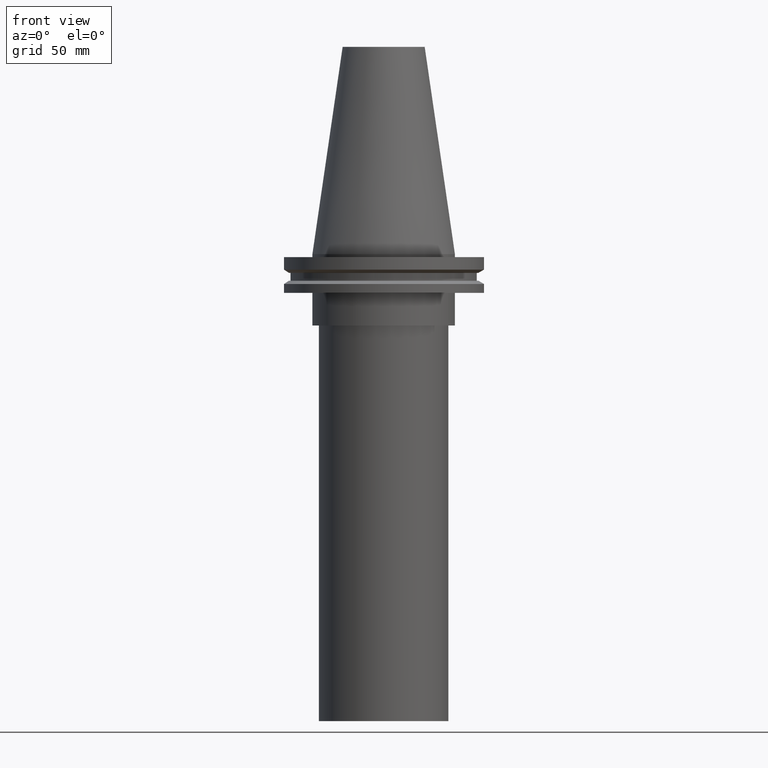
[diagram: clean part render]
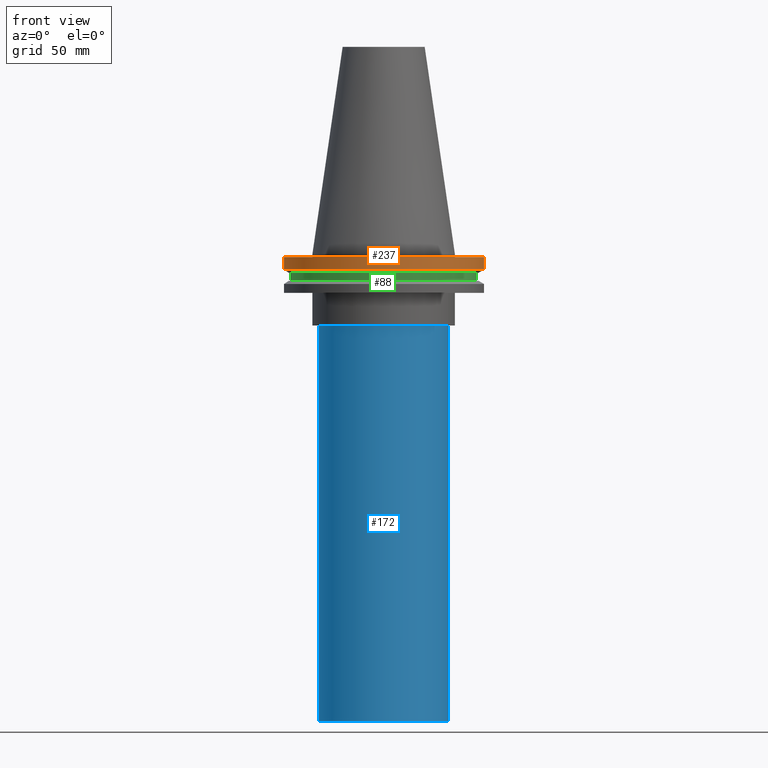
[diagram: same view with three faces highlighted in distinct colors, each labeled with its STEP entity id]
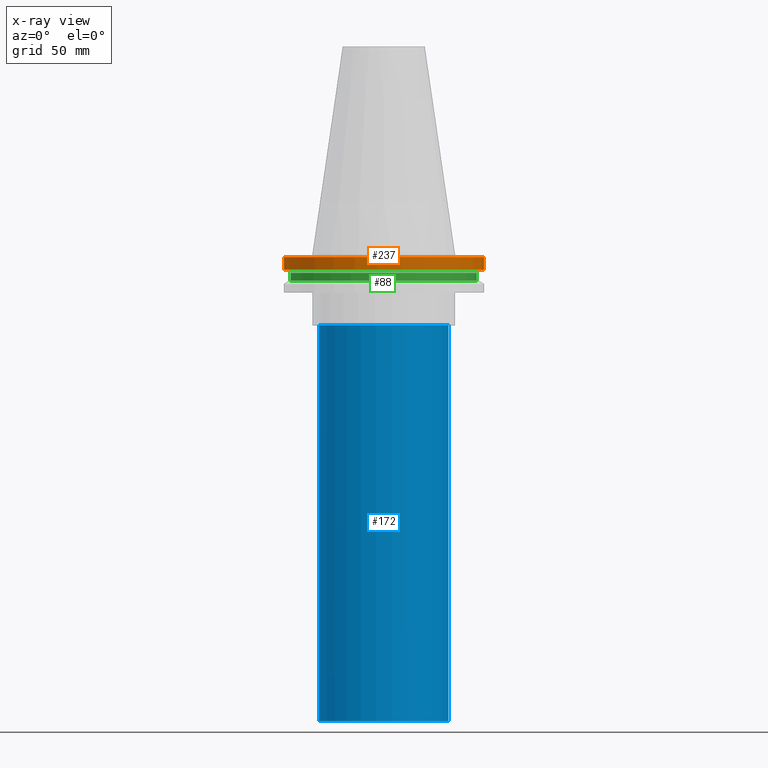
[diagram: x-ray of the same camera — body ghosted, the three highlighted faces saturated]
A machine part, front view with three faces highlighted in distinct colors.
The next image is the same camera in x-ray (body ghosted, the three faces saturated) — at least one of them is partly hidden behind the body in this view.
Their STEP definitions:

[orange] entity #237 — the highlighted cylindrical surface (bore or boss wall) has radius 49.215 mm, axis along (-0, -0, 1).
#28 = FACE_OUTER_BOUND ( 'NONE', #228, .T. ) ;
#38 = EDGE_LOOP ( 'NONE', ( #319 ) ) ;
#82 = CIRCLE ( 'NONE', #267, 49.21500000000000341 ) ;
#85 = VERTEX_POINT ( 'NONE', #387 ) ;
#98 = CARTESIAN_POINT ( 'NONE',  ( 0.000000000000000000, 0.000000000000000000, 101.5999999999999943 ) ) ;
#99 = DIRECTION ( 'NONE',  ( 1.000000000000000000, 0.000000000000000000, 0.000000000000000000 ) ) ;
#114 = CIRCLE ( 'NONE', #304, 49.21499999999999631 ) ;
#128 = CARTESIAN_POINT ( 'NONE',  ( 0.000000000000000000, 0.000000000000000000, -7.602389855251287187 ) ) ;
#129 = DIRECTION ( 'NONE',  ( -0.000000000000000000, -0.000000000000000000, 1.000000000000000000 ) ) ;
#141 = AXIS2_PLACEMENT_3D ( 'NONE', #98, #312, #99 ) ;
#183 = FACE_OUTER_BOUND ( 'NONE', #38, .T. ) ;
#222 = DIRECTION ( 'NONE',  ( -0.000000000000000000, -0.000000000000000000, 1.000000000000000000 ) ) ;
#228 = EDGE_LOOP ( 'NONE', ( #310 ) ) ;
#230 = CARTESIAN_POINT ( 'NONE',  ( 49.21500000000000341, 0.000000000000000000, -7.602389855251287187 ) ) ;
#237 = ADVANCED_FACE ( 'NONE', ( #183, #28 ), #365, .T. ) ;
#253 = DIRECTION ( 'NONE',  ( 1.000000000000000000, 0.000000000000000000, 0.000000000000000000 ) ) ;
#267 = AXIS2_PLACEMENT_3D ( 'NONE', #128, #129, #381 ) ;
#304 = AXIS2_PLACEMENT_3D ( 'NONE', #377, #222, #253 ) ;
#310 = ORIENTED_EDGE ( 'NONE', *, *, #320, .T. ) ;
#312 = DIRECTION ( 'NONE',  ( -0.000000000000000000, -0.000000000000000000, 1.000000000000000000 ) ) ;
#319 = ORIENTED_EDGE ( 'NONE', *, *, #394, .F. ) ;
#320 = EDGE_CURVE ( 'NONE', #390, #390, #82, .T. ) ;
#365 = CYLINDRICAL_SURFACE ( 'NONE', #141, 49.21499999999999631 ) ;
#377 = CARTESIAN_POINT ( 'NONE',  ( 0.000000000000000000, 0.000000000000000000, -1.499999999999987566 ) ) ;
#381 = DIRECTION ( 'NONE',  ( 1.000000000000000000, 0.000000000000000000, 0.000000000000000000 ) ) ;
#387 = CARTESIAN_POINT ( 'NONE',  ( 49.21499999999999631, 0.000000000000000000, -1.499999999999987566 ) ) ;
#390 = VERTEX_POINT ( 'NONE', #230 ) ;
#394 = EDGE_CURVE ( 'NONE', #85, #85, #114, .T. ) ;

[blue] entity #172 — the highlighted cylindrical surface (bore or boss wall) has radius 31.75 mm, axis along (-0, -0, 1).
#50 = CARTESIAN_POINT ( 'NONE',  ( 31.75000000000000000, 0.000000000000000000, -35.00000000000000000 ) ) ;
#63 = CARTESIAN_POINT ( 'NONE',  ( 0.000000000000000000, 0.000000000000000000, -229.0000000000000000 ) ) ;
#67 = CARTESIAN_POINT ( 'NONE',  ( 0.000000000000000000, 0.000000000000000000, 0.000000000000000000 ) ) ;
#124 = DIRECTION ( 'NONE',  ( 1.000000000000000000, 0.000000000000000000, 0.000000000000000000 ) ) ;
#136 = ORIENTED_EDGE ( 'NONE', *, *, #286, .F. ) ;
#147 = AXIS2_PLACEMENT_3D ( 'NONE', #63, #303, #124 ) ;
#150 = DIRECTION ( 'NONE',  ( 1.000000000000000000, 0.000000000000000000, 0.000000000000000000 ) ) ;
#158 = EDGE_CURVE ( 'NONE', #188, #188, #215, .T. ) ;
#172 = ADVANCED_FACE ( 'NONE', ( #218, #211 ), #178, .T. ) ;
#173 = VERTEX_POINT ( 'NONE', #50 ) ;
#177 = AXIS2_PLACEMENT_3D ( 'NONE', #67, #371, #150 ) ;
#178 = CYLINDRICAL_SURFACE ( 'NONE', #177, 31.75000000000000000 ) ;
#179 = DIRECTION ( 'NONE',  ( -0.000000000000000000, -0.000000000000000000, 1.000000000000000000 ) ) ;
#188 = VERTEX_POINT ( 'NONE', #342 ) ;
#189 = AXIS2_PLACEMENT_3D ( 'NONE', #240, #179, #307 ) ;
#198 = EDGE_LOOP ( 'NONE', ( #252 ) ) ;
#211 = FACE_OUTER_BOUND ( 'NONE', #198, .T. ) ;
#215 = CIRCLE ( 'NONE', #147, 31.75000000000000000 ) ;
#218 = FACE_OUTER_BOUND ( 'NONE', #337, .T. ) ;
#240 = CARTESIAN_POINT ( 'NONE',  ( 0.000000000000000000, 0.000000000000000000, -35.00000000000000000 ) ) ;
#252 = ORIENTED_EDGE ( 'NONE', *, *, #158, .T. ) ;
#286 = EDGE_CURVE ( 'NONE', #173, #173, #389, .T. ) ;
#303 = DIRECTION ( 'NONE',  ( -0.000000000000000000, -0.000000000000000000, 1.000000000000000000 ) ) ;
#307 = DIRECTION ( 'NONE',  ( 1.000000000000000000, 0.000000000000000000, 0.000000000000000000 ) ) ;
#337 = EDGE_LOOP ( 'NONE', ( #136 ) ) ;
#342 = CARTESIAN_POINT ( 'NONE',  ( 31.75000000000000000, 0.000000000000000000, -229.0000000000000000 ) ) ;
#371 = DIRECTION ( 'NONE',  ( -0.000000000000000000, -0.000000000000000000, 1.000000000000000000 ) ) ;
#389 = CIRCLE ( 'NONE', #189, 31.75000000000000000 ) ;

[green] entity #88 — the highlighted cylindrical surface (bore or boss wall) has radius 45.645 mm, axis along (-0, -0, 1).
#13 = FACE_OUTER_BOUND ( 'NONE', #227, .T. ) ;
#15 = ORIENTED_EDGE ( 'NONE', *, *, #127, .T. ) ;
#24 = AXIS2_PLACEMENT_3D ( 'NONE', #113, #234, #196 ) ;
#42 = CARTESIAN_POINT ( 'NONE',  ( 45.64500000000000313, 0.000000000000000000, -9.204999999999991189 ) ) ;
#80 = CYLINDRICAL_SURFACE ( 'NONE', #24, 45.64500000000000313 ) ;
#88 = ADVANCED_FACE ( 'NONE', ( #13, #386 ), #80, .T. ) ;
#91 = ORIENTED_EDGE ( 'NONE', *, *, #216, .F. ) ;
#96 = CARTESIAN_POINT ( 'NONE',  ( 0.000000000000000000, 0.000000000000000000, -9.204999999999991189 ) ) ;
#103 = VERTEX_POINT ( 'NONE', #109 ) ;
#109 = CARTESIAN_POINT ( 'NONE',  ( 45.64500000000000313, 0.000000000000000000, -13.05499999999999794 ) ) ;
#113 = CARTESIAN_POINT ( 'NONE',  ( 0.000000000000000000, 0.000000000000000000, 101.5999999999999943 ) ) ;
#127 = EDGE_CURVE ( 'NONE', #103, #103, #345, .T. ) ;
#131 = AXIS2_PLACEMENT_3D ( 'NONE', #238, #155, #392 ) ;
#155 = DIRECTION ( 'NONE',  ( -0.000000000000000000, -0.000000000000000000, 1.000000000000000000 ) ) ;
#160 = VERTEX_POINT ( 'NONE', #42 ) ;
#181 = DIRECTION ( 'NONE',  ( 1.000000000000000000, 0.000000000000000000, 0.000000000000000000 ) ) ;
#193 = CIRCLE ( 'NONE', #281, 45.64500000000000313 ) ;
#196 = DIRECTION ( 'NONE',  ( 1.000000000000000000, 0.000000000000000000, 0.000000000000000000 ) ) ;
#216 = EDGE_CURVE ( 'NONE', #160, #160, #193, .T. ) ;
#227 = EDGE_LOOP ( 'NONE', ( #91 ) ) ;
#234 = DIRECTION ( 'NONE',  ( -0.000000000000000000, -0.000000000000000000, 1.000000000000000000 ) ) ;
#238 = CARTESIAN_POINT ( 'NONE',  ( 0.000000000000000000, 0.000000000000000000, -13.05499999999999794 ) ) ;
#281 = AXIS2_PLACEMENT_3D ( 'NONE', #96, #335, #181 ) ;
#292 = EDGE_LOOP ( 'NONE', ( #15 ) ) ;
#335 = DIRECTION ( 'NONE',  ( -0.000000000000000000, -0.000000000000000000, 1.000000000000000000 ) ) ;
#345 = CIRCLE ( 'NONE', #131, 45.64500000000000313 ) ;
#386 = FACE_OUTER_BOUND ( 'NONE', #292, .T. ) ;
#392 = DIRECTION ( 'NONE',  ( 1.000000000000000000, 0.000000000000000000, 0.000000000000000000 ) ) ;